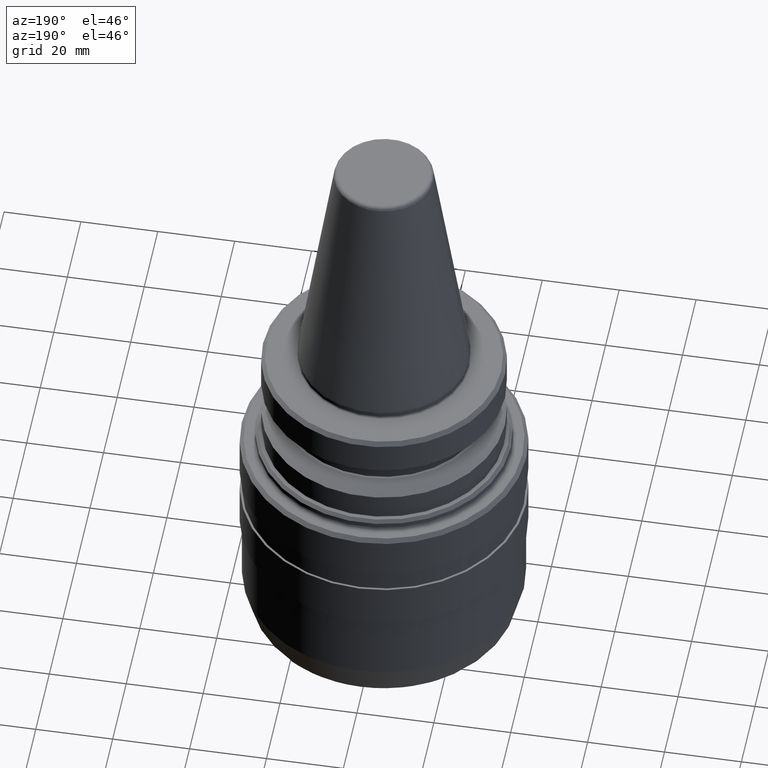
[diagram: clean part render]
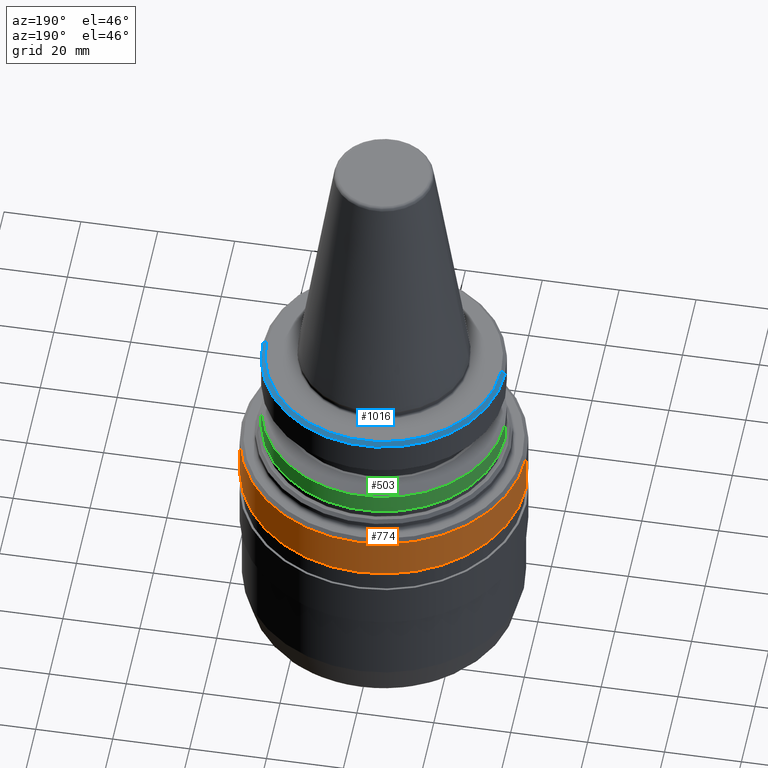
[diagram: same view with three faces highlighted in distinct colors, each labeled with its STEP entity id]
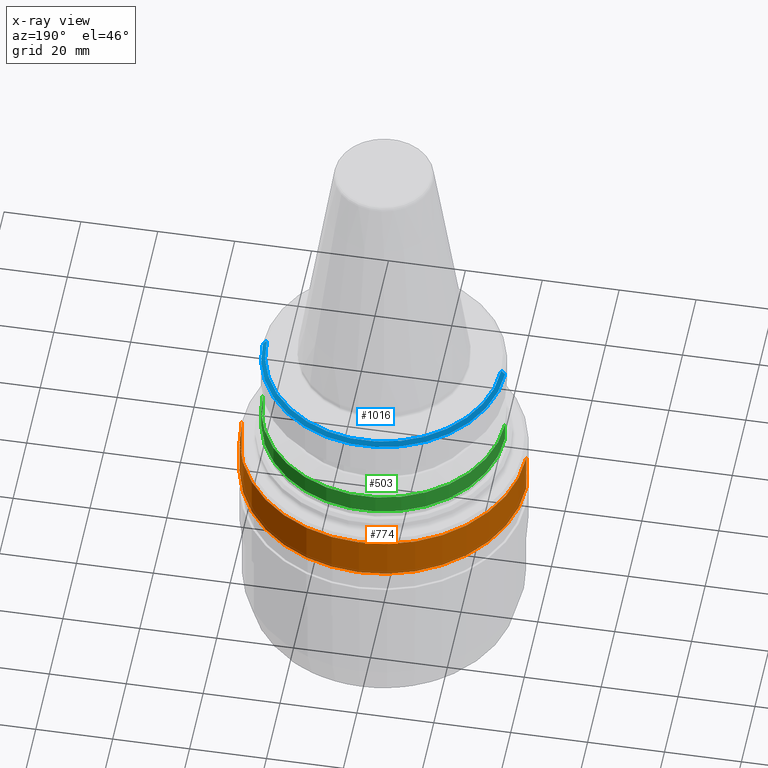
[diagram: x-ray of the same camera — body ghosted, the three highlighted faces saturated]
A machine part, auxiliary view with three faces highlighted in distinct colors.
The next image is the same camera in x-ray (body ghosted, the three faces saturated) — at least one of them is partly hidden behind the body in this view.
Their STEP definitions:

[orange] entity #774 — the highlighted cylindrical surface (partial cylindrical patch) has radius 37 mm, axis along (-0, -0, 1).
#8 = VERTEX_POINT ( 'NONE', #80 ) ;
#26 = CARTESIAN_POINT ( 'NONE',  ( -36.99999999999992900, 4.531193156845198100E-015, -33.00000000000126500 ) ) ;
#58 = CARTESIAN_POINT ( 'NONE',  ( 0.0000000000000000000, 0.0000000000000000000, -33.00000000000126500 ) ) ;
#80 = CARTESIAN_POINT ( 'NONE',  ( 36.99999999999992200, 0.0000000000000000000, -44.00000000000091700 ) ) ;
#85 = EDGE_CURVE ( 'NONE', #346, #99, #750, .T. ) ;
#99 = VERTEX_POINT ( 'NONE', #26 ) ;
#131 = AXIS2_PLACEMENT_3D ( 'NONE', #58, #981, #204 ) ;
#204 = DIRECTION ( 'NONE',  ( 1.000000000000000000, 0.0000000000000000000, 0.0000000000000000000 ) ) ;
#222 = AXIS2_PLACEMENT_3D ( 'NONE', #1243, #686, #744 ) ;
#301 = VERTEX_POINT ( 'NONE', #609 ) ;
#346 = VERTEX_POINT ( 'NONE', #641 ) ;
#398 = FACE_OUTER_BOUND ( 'NONE', #1527, .T. ) ;
#492 = VECTOR ( 'NONE', #785, 1000.000000000000000 ) ;
#518 = EDGE_CURVE ( 'NONE', #8, #346, #1636, .T. ) ;
#594 = ORIENTED_EDGE ( 'NONE', *, *, #518, .T. ) ;
#609 = CARTESIAN_POINT ( 'NONE',  ( 36.99999999999992900, 0.0000000000000000000, -33.00000000000126500 ) ) ;
#641 = CARTESIAN_POINT ( 'NONE',  ( -36.99999999999992200, 4.531193156845197300E-015, -44.00000000000091700 ) ) ;
#686 = DIRECTION ( 'NONE',  ( -0.0000000000000000000, -0.0000000000000000000, 1.000000000000000000 ) ) ;
#692 = DIRECTION ( 'NONE',  ( -0.0000000000000000000, -0.0000000000000000000, 1.000000000000000000 ) ) ;
#744 = DIRECTION ( 'NONE',  ( 1.000000000000000000, 0.0000000000000000000, 0.0000000000000000000 ) ) ;
#750 = LINE ( 'NONE', #926, #492 ) ;
#774 = ADVANCED_FACE ( 'NONE', ( #398 ), #865, .T. ) ;
#785 = DIRECTION ( 'NONE',  ( -0.0000000000000000000, -0.0000000000000000000, 1.000000000000000000 ) ) ;
#801 = VECTOR ( 'NONE', #1434, 1000.000000000000000 ) ;
#814 = CIRCLE ( 'NONE', #131, 36.99999999999992900 ) ;
#843 = LINE ( 'NONE', #1092, #801 ) ;
#865 = CYLINDRICAL_SURFACE ( 'NONE', #1127, 36.99999999999992200 ) ;
#926 = CARTESIAN_POINT ( 'NONE',  ( -36.99999999999992200, 4.531193156845197300E-015, 83.38305275654680300 ) ) ;
#981 = DIRECTION ( 'NONE',  ( -0.0000000000000000000, -0.0000000000000000000, 1.000000000000000000 ) ) ;
#1074 = EDGE_CURVE ( 'NONE', #8, #301, #843, .T. ) ;
#1092 = CARTESIAN_POINT ( 'NONE',  ( 36.99999999999992200, 0.0000000000000000000, 83.38305275654680300 ) ) ;
#1127 = AXIS2_PLACEMENT_3D ( 'NONE', #1225, #692, #1483 ) ;
#1225 = CARTESIAN_POINT ( 'NONE',  ( 0.0000000000000000000, 0.0000000000000000000, 83.38305275654680300 ) ) ;
#1243 = CARTESIAN_POINT ( 'NONE',  ( 0.0000000000000000000, 0.0000000000000000000, -44.00000000000091700 ) ) ;
#1380 = ORIENTED_EDGE ( 'NONE', *, *, #85, .T. ) ;
#1398 = ORIENTED_EDGE ( 'NONE', *, *, #1626, .F. ) ;
#1434 = DIRECTION ( 'NONE',  ( -0.0000000000000000000, -0.0000000000000000000, 1.000000000000000000 ) ) ;
#1483 = DIRECTION ( 'NONE',  ( 1.000000000000000000, 0.0000000000000000000, 0.0000000000000000000 ) ) ;
#1484 = ORIENTED_EDGE ( 'NONE', *, *, #1074, .F. ) ;
#1527 = EDGE_LOOP ( 'NONE', ( #594, #1380, #1398, #1484 ) ) ;
#1626 = EDGE_CURVE ( 'NONE', #301, #99, #814, .T. ) ;
#1636 = CIRCLE ( 'NONE', #222, 36.99999999999992200 ) ;

[blue] entity #1016 — the highlighted conical surface has half-angle 45 deg.
#45 = CARTESIAN_POINT ( 'NONE',  ( 0.0000000000000000000, 0.0000000000000000000, -3.000000000001001900 ) ) ;
#109 = ORIENTED_EDGE ( 'NONE', *, *, #999, .F. ) ;
#119 = CIRCLE ( 'NONE', #586, 31.50000000000024900 ) ;
#125 = ORIENTED_EDGE ( 'NONE', *, *, #290, .T. ) ;
#170 = CARTESIAN_POINT ( 'NONE',  ( 0.0000000000000000000, 0.0000000000000000000, -3.000000000001001900 ) ) ;
#177 = ORIENTED_EDGE ( 'NONE', *, *, #613, .T. ) ;
#202 = AXIS2_PLACEMENT_3D ( 'NONE', #909, #681, #1392 ) ;
#240 = FACE_OUTER_BOUND ( 'NONE', #603, .T. ) ;
#274 = EDGE_CURVE ( 'NONE', #1146, #795, #947, .T. ) ;
#290 = EDGE_CURVE ( 'NONE', #1563, #961, #119, .T. ) ;
#291 = CARTESIAN_POINT ( 'NONE',  ( -30.50000000000024900, 0.0000000000000000000, -2.000000000001112000 ) ) ;
#307 = DIRECTION ( 'NONE',  ( -1.000000000000000000, 0.0000000000000000000, 0.0000000000000000000 ) ) ;
#350 = CARTESIAN_POINT ( 'NONE',  ( 31.50000000000024900, 3.857637417314193500E-015, -3.000000000001001900 ) ) ;
#417 = AXIS2_PLACEMENT_3D ( 'NONE', #170, #1540, #307 ) ;
#586 = AXIS2_PLACEMENT_3D ( 'NONE', #45, #878, #1602 ) ;
#590 = VECTOR ( 'NONE', #823, 1000.000000000000000 ) ;
#603 = EDGE_LOOP ( 'NONE', ( #1646, #177, #125, #109 ) ) ;
#613 = EDGE_CURVE ( 'NONE', #1146, #1563, #1639, .T. ) ;
#681 = DIRECTION ( 'NONE',  ( -0.0000000000000000000, -0.0000000000000000000, 1.000000000000000000 ) ) ;
#696 = CARTESIAN_POINT ( 'NONE',  ( -31.50000000000024900, 0.0000000000000000000, -3.000000000001001900 ) ) ;
#795 = VERTEX_POINT ( 'NONE', #291 ) ;
#823 = DIRECTION ( 'NONE',  ( -0.7071067811865867600, 0.0000000000000000000, -0.7071067811865081600 ) ) ;
#861 = VECTOR ( 'NONE', #1420, 1000.000000000000000 ) ;
#878 = DIRECTION ( 'NONE',  ( -0.0000000000000000000, -0.0000000000000000000, 1.000000000000000000 ) ) ;
#909 = CARTESIAN_POINT ( 'NONE',  ( 0.0000000000000000000, 0.0000000000000000000, -2.000000000001112000 ) ) ;
#947 = CIRCLE ( 'NONE', #202, 30.50000000000024900 ) ;
#961 = VERTEX_POINT ( 'NONE', #1299 ) ;
#999 = EDGE_CURVE ( 'NONE', #795, #961, #1561, .T. ) ;
#1016 = ADVANCED_FACE ( 'NONE', ( #240 ), #1480, .T. ) ;
#1090 = CARTESIAN_POINT ( 'NONE',  ( 31.50000000000024900, 0.0000000000000000000, -3.000000000001001900 ) ) ;
#1146 = VERTEX_POINT ( 'NONE', #1333 ) ;
#1299 = CARTESIAN_POINT ( 'NONE',  ( -31.50000000000024900, 3.857637417314193500E-015, -3.000000000001001900 ) ) ;
#1333 = CARTESIAN_POINT ( 'NONE',  ( 30.50000000000024900, 3.796405077356825100E-015, -2.000000000001112000 ) ) ;
#1392 = DIRECTION ( 'NONE',  ( 1.000000000000000000, 0.0000000000000000000, 0.0000000000000000000 ) ) ;
#1420 = DIRECTION ( 'NONE',  ( 0.7071067811865867600, 8.659560562355413600E-017, -0.7071067811865081600 ) ) ;
#1480 = CONICAL_SURFACE ( 'NONE', #417, 31.50000000000024900, 0.7853981633975037900 ) ;
#1540 = DIRECTION ( 'NONE',  ( 0.0000000000000000000, 0.0000000000000000000, -1.000000000000000000 ) ) ;
#1561 = LINE ( 'NONE', #696, #590 ) ;
#1563 = VERTEX_POINT ( 'NONE', #1090 ) ;
#1602 = DIRECTION ( 'NONE',  ( 1.000000000000000000, 0.0000000000000000000, 0.0000000000000000000 ) ) ;
#1639 = LINE ( 'NONE', #350, #861 ) ;
#1646 = ORIENTED_EDGE ( 'NONE', *, *, #274, .F. ) ;

[green] entity #503 — the highlighted cylindrical surface (partial cylindrical patch) has radius 31.5 mm, axis along (-0, -0, 1).
#38 = CARTESIAN_POINT ( 'NONE',  ( 0.0000000000000000000, 0.0000000000000000000, -21.60014200631765700 ) ) ;
#175 = ORIENTED_EDGE ( 'NONE', *, *, #217, .T. ) ;
#180 = FACE_OUTER_BOUND ( 'NONE', #809, .T. ) ;
#187 = DIRECTION ( 'NONE',  ( 1.000000000000000000, 0.0000000000000000000, 0.0000000000000000000 ) ) ;
#217 = EDGE_CURVE ( 'NONE', #317, #673, #1216, .T. ) ;
#242 = CARTESIAN_POINT ( 'NONE',  ( 31.50000000000024900, 0.0000000000000000000, -21.60014200631765700 ) ) ;
#282 = DIRECTION ( 'NONE',  ( 1.000000000000000000, 0.0000000000000000000, 0.0000000000000000000 ) ) ;
#312 = DIRECTION ( 'NONE',  ( 1.000000000000000000, 0.0000000000000000000, 0.0000000000000000000 ) ) ;
#317 = VERTEX_POINT ( 'NONE', #533 ) ;
#357 = DIRECTION ( 'NONE',  ( -0.0000000000000000000, -0.0000000000000000000, 1.000000000000000000 ) ) ;
#371 = ORIENTED_EDGE ( 'NONE', *, *, #837, .T. ) ;
#385 = CARTESIAN_POINT ( 'NONE',  ( -31.50000000000024900, 3.857637417314193500E-015, -26.74999999999760900 ) ) ;
#503 = ADVANCED_FACE ( 'NONE', ( #180 ), #1346, .T. ) ;
#508 = AXIS2_PLACEMENT_3D ( 'NONE', #38, #965, #187 ) ;
#533 = CARTESIAN_POINT ( 'NONE',  ( 31.50000000000024900, 0.0000000000000000000, -26.74999999999760900 ) ) ;
#652 = AXIS2_PLACEMENT_3D ( 'NONE', #1229, #357, #282 ) ;
#673 = VERTEX_POINT ( 'NONE', #385 ) ;
#753 = VERTEX_POINT ( 'NONE', #1282 ) ;
#809 = EDGE_LOOP ( 'NONE', ( #175, #371, #1180, #1424 ) ) ;
#825 = LINE ( 'NONE', #1497, #1122 ) ;
#837 = EDGE_CURVE ( 'NONE', #673, #753, #825, .T. ) ;
#877 = AXIS2_PLACEMENT_3D ( 'NONE', #1222, #922, #312 ) ;
#922 = DIRECTION ( 'NONE',  ( -0.0000000000000000000, -0.0000000000000000000, 1.000000000000000000 ) ) ;
#965 = DIRECTION ( 'NONE',  ( -0.0000000000000000000, -0.0000000000000000000, 1.000000000000000000 ) ) ;
#1026 = DIRECTION ( 'NONE',  ( -0.0000000000000000000, -0.0000000000000000000, 1.000000000000000000 ) ) ;
#1038 = EDGE_CURVE ( 'NONE', #1317, #753, #1441, .T. ) ;
#1122 = VECTOR ( 'NONE', #1026, 1000.000000000000000 ) ;
#1180 = ORIENTED_EDGE ( 'NONE', *, *, #1038, .F. ) ;
#1216 = CIRCLE ( 'NONE', #652, 31.50000000000024900 ) ;
#1221 = LINE ( 'NONE', #1432, #1255 ) ;
#1222 = CARTESIAN_POINT ( 'NONE',  ( 0.0000000000000000000, 0.0000000000000000000, 94.08025387168953600 ) ) ;
#1229 = CARTESIAN_POINT ( 'NONE',  ( 0.0000000000000000000, 0.0000000000000000000, -26.74999999999760900 ) ) ;
#1255 = VECTOR ( 'NONE', #1562, 1000.000000000000000 ) ;
#1282 = CARTESIAN_POINT ( 'NONE',  ( -31.50000000000024900, 3.857637417314193500E-015, -21.60014200631765700 ) ) ;
#1317 = VERTEX_POINT ( 'NONE', #242 ) ;
#1346 = CYLINDRICAL_SURFACE ( 'NONE', #877, 31.50000000000024900 ) ;
#1424 = ORIENTED_EDGE ( 'NONE', *, *, #1582, .F. ) ;
#1432 = CARTESIAN_POINT ( 'NONE',  ( 31.50000000000024900, 0.0000000000000000000, 94.08025387168953600 ) ) ;
#1441 = CIRCLE ( 'NONE', #508, 31.50000000000024900 ) ;
#1497 = CARTESIAN_POINT ( 'NONE',  ( -31.50000000000024900, 3.857637417314193500E-015, 94.08025387168953600 ) ) ;
#1562 = DIRECTION ( 'NONE',  ( -0.0000000000000000000, -0.0000000000000000000, 1.000000000000000000 ) ) ;
#1582 = EDGE_CURVE ( 'NONE', #317, #1317, #1221, .T. ) ;